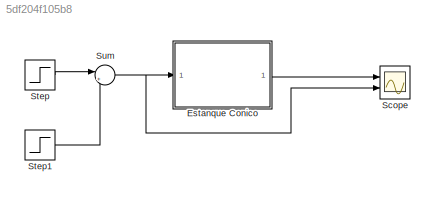
MODEL slx_5df204f105b8
KIND model
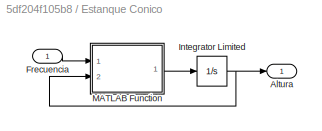
BLOCK [SubSystem] Estanque Conico
  Ports = [1, 1]
  RequestExecContextInheritance = off
BLOCK [Outport] Estanque Conico/Altura
  IconDisplay = Port number
BLOCK [Inport] Estanque Conico/Frecuencia
  IconDisplay = Port number
BLOCK [Integrator] Estanque Conico/Integrator Limited
  InitialCondition = 20
  LimitOutput = on
  LowerSaturationLimit = 0
  Ports = [1, 1]
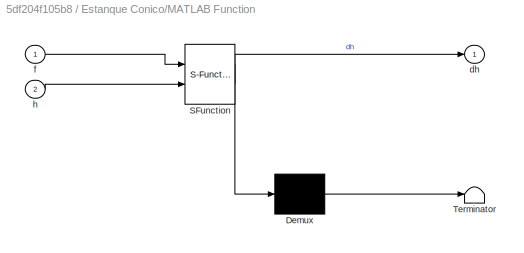
BLOCK [SubSystem] Estanque Conico/MATLAB Function
  ErrorFcn = Stateflow.Translate.translate
  PermitHierarchicalResolution = ParametersOnly
  Ports = [2, 1]
  RequestExecContextInheritance = off
  SFBlockType = MATLAB Function
  TreatAsAtomicUnit = on
BLOCK [Demux] Estanque Conico/MATLAB Function/ Demux 
  Outputs = 1
  Ports = [1, 1]
BLOCK [S-Function] Estanque Conico/MATLAB Function/ SFunction 
  EnableBusSupport = on
  FunctionName = sf_sfun
  PortCounts = [2 2]
  Ports = [2, 2]
  SFunctionDeploymentMode = off
  Tag = Stateflow S-Function SimEstanque 2
BLOCK [Terminator] Estanque Conico/MATLAB Function/ Terminator 
BLOCK [Outport] Estanque Conico/MATLAB Function/dh
  IconDisplay = Port number
BLOCK [Inport] Estanque Conico/MATLAB Function/f
  IconDisplay = Port number
BLOCK [Inport] Estanque Conico/MATLAB Function/h
  IconDisplay = Port number
  Port = 2
BLOCK [Scope] Scope
  DataFormat = StructureWithTime
  Decimation = 1
  Floating = off
  Grid = on
  LimitDataPoints = off
  MaxDataPoints = 5000
  NumInputPorts = 2
  Ports = [2]
  SampleInput = off
  SampleTime = -1
  SaveName = ScopeData
  SaveToWorkspace = off
  ShowLegends = off
  TickLabels = OneTimeTick
  TimeRange = auto
  YMax = 112.5~5
  YMin = -12.5~-5
  ZoomMode = on
BLOCK [Step] Step
  After = 100
  SampleTime = 0
  Time = 25
BLOCK [Step] Step1
  After = -100
  SampleTime = 0
  Time = 75
BLOCK [Sum] Sum
  IconShape = round
  InputSameDT = off
  Inputs = |++
  OutDataTypeStr = Inherit: Inherit via internal rule
  Ports = [2, 1]
  SaturateOnIntegerOverflow = off
LINE Estanque Conico/Frecuencia:1 -> Estanque Conico/MATLAB Function:1
NET Estanque Conico/Integrator Limited:1 -> Estanque Conico/Altura:1, Estanque Conico/MATLAB Function:2
LINE Estanque Conico/MATLAB Function:1 -> Estanque Conico/Integrator Limited:1
LINE Estanque Conico:1 -> Scope:1
LINE Step1:1 -> Sum:2
LINE Step:1 -> Sum:1
NET Sum:1 -> Estanque Conico:1, Scope:2
note: NET lines group one-source signal fan-out (src -> all destinations, sorted); 1:1 wires keep LINE
